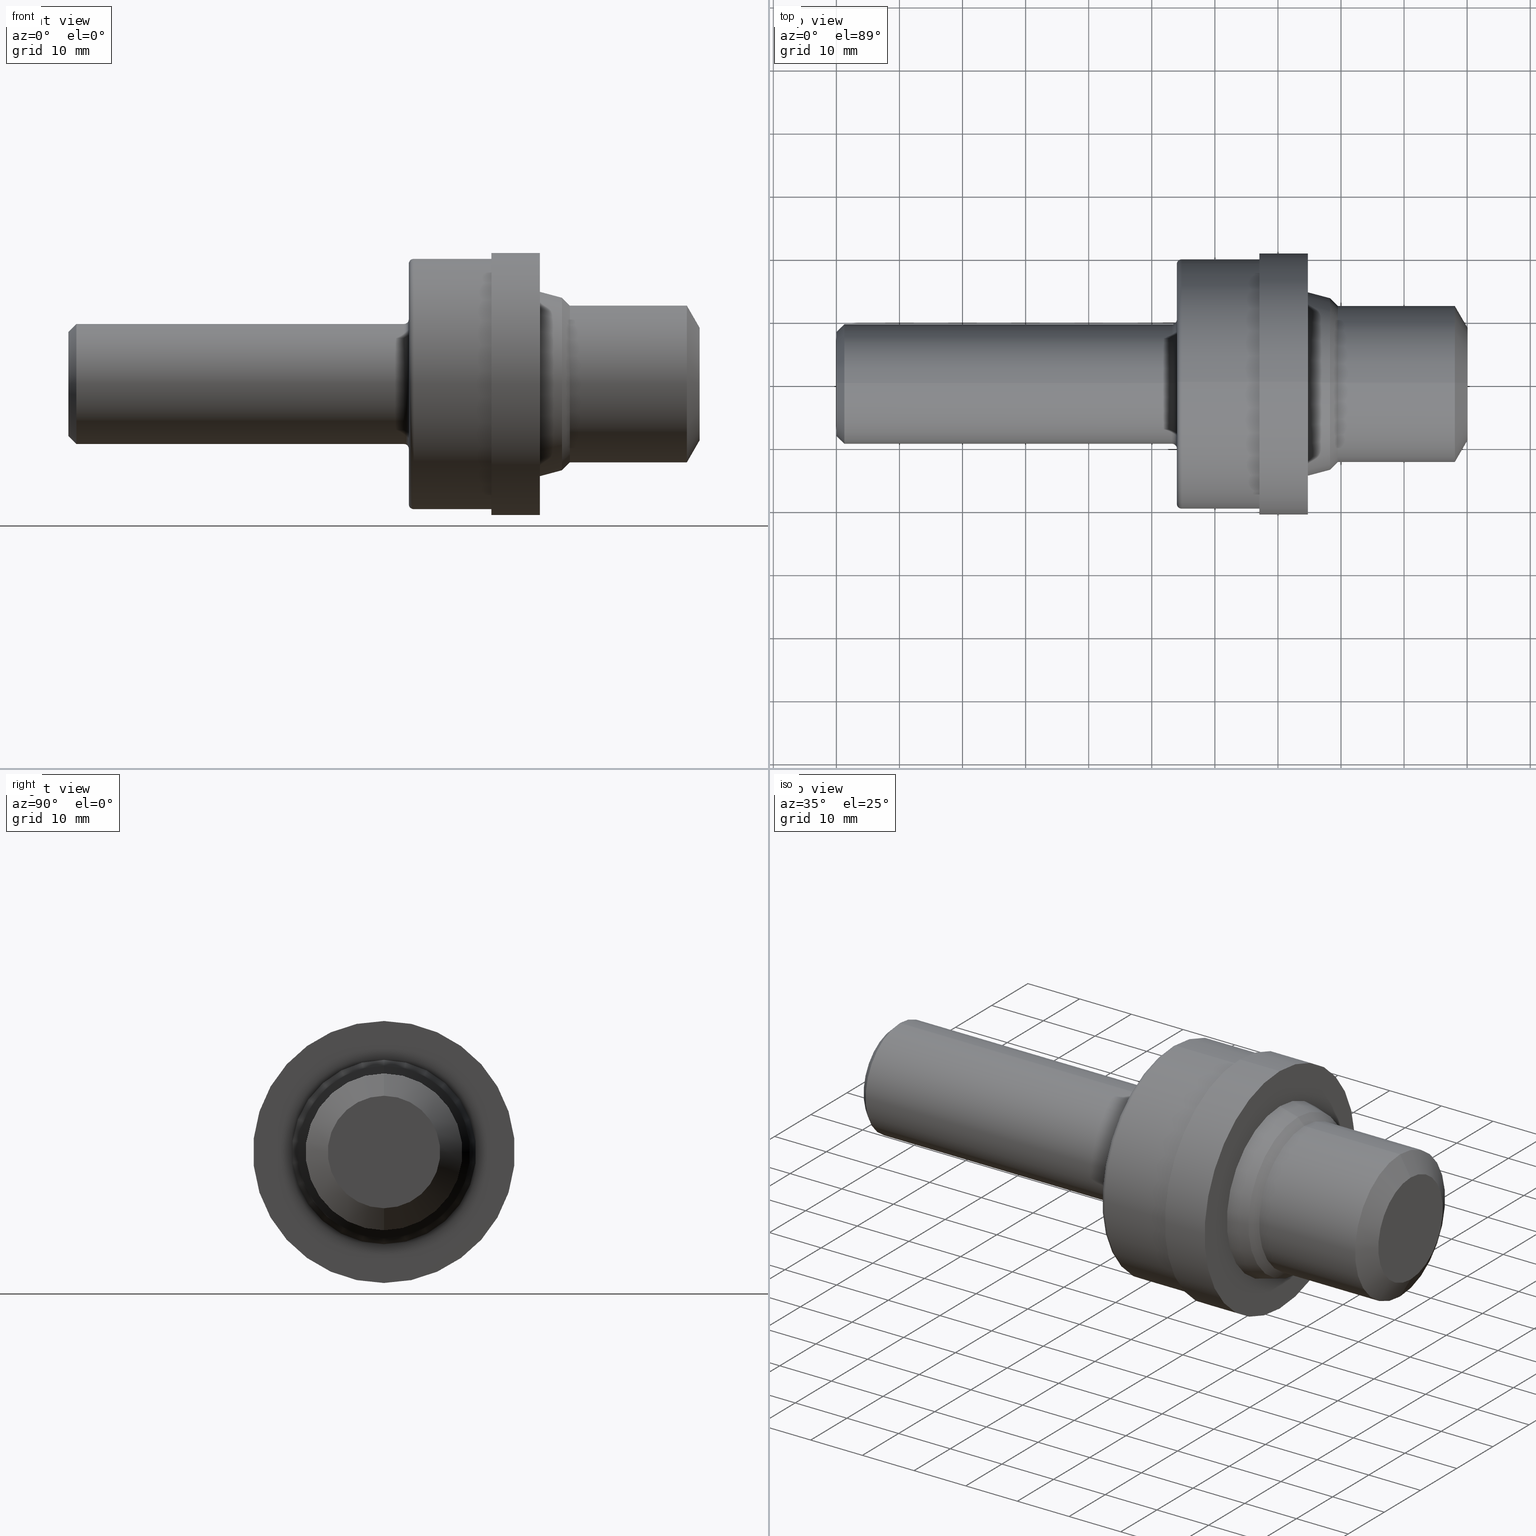
[diagram: canonical four-view strip — front | top / right | iso, engineering-drawing reading convention]
A machine part, canonical four-view strip (front | top / right | iso — engineering-drawing reading convention). The complete STEP part file that produces these views, byte-faithful:
ISO-10303-21;
HEADER;
FILE_DESCRIPTION (( 'STEP AP214' ),
    '1' );
FILE_NAME ('MS16142-12R.STEP',
    '2018-07-13T17:10:02',
    ( '' ),
    ( '' ),
    'SwSTEP 2.0',
    'SolidWorks 2018',
    '' );
FILE_SCHEMA (( 'AUTOMOTIVE_DESIGN' ));
ENDSEC;

DATA;
#1 = EDGE_CURVE ( 'NONE', #489, #303, #291, .T. ) ;
#2 = ORIENTED_EDGE ( 'NONE', *, *, #654, .F. ) ;
#3 = DIRECTION ( 'NONE',  ( 0.0000000000000000000, 0.0000000000000000000, 1.000000000000000000 ) ) ;
#4 = EDGE_LOOP ( 'NONE', ( #304, #479, #646, #320 ) ) ;
#5 = PRESENTATION_LAYER_ASSIGNMENT (  '', '', ( #650 ) ) ;
#6 = ORIENTED_EDGE ( 'NONE', *, *, #584, .F. ) ;
#7 = VERTEX_POINT ( 'NONE', #241 ) ;
#8 = DIRECTION ( 'NONE',  ( -1.000000000000000000, -0.0000000000000000000, -0.0000000000000000000 ) ) ;
#9 = FACE_OUTER_BOUND ( 'NONE', #151, .T. ) ;
#10 = EDGE_LOOP ( 'NONE', ( #555, #548, #166, #289 ) ) ;
#11 = FACE_OUTER_BOUND ( 'NONE', #416, .T. ) ;
#12 = EDGE_CURVE ( 'NONE', #632, #578, #557, .T. ) ;
#13 = CARTESIAN_POINT ( 'NONE',  ( 3.859999999999999876, 0.0000000000000000000, 0.0000000000000000000 ) ) ;
#14 = DIRECTION ( 'NONE',  ( 0.0000000000000000000, 0.0000000000000000000, 1.000000000000000000 ) ) ;
#15 = CIRCLE ( 'NONE', #610, 0.3748500000000000165 ) ;
#16 = EDGE_CURVE ( 'NONE', #63, #653, #430, .T. ) ;
#17 = AXIS2_PLACEMENT_3D ( 'NONE', #33, #282, #125 ) ;
#18 = UNCERTAINTY_MEASURE_WITH_UNIT (LENGTH_MEASURE( 1.000000000000000082E-05 ), #197, 'distance_accuracy_value', 'NONE');
#19 = DIRECTION ( 'NONE',  ( 0.0000000000000000000, 0.0000000000000000000, 1.000000000000000000 ) ) ;
#20 = DIRECTION ( 'NONE',  ( 0.0000000000000000000, 0.0000000000000000000, 1.000000000000000000 ) ) ;
#21 = EDGE_LOOP ( 'NONE', ( #46, #526 ) ) ;
#22 = EDGE_CURVE ( 'NONE', #122, #231, #26, .T. ) ;
#23 = EDGE_LOOP ( 'NONE', ( #117, #670, #608, #580 ) ) ;
#24 = CARTESIAN_POINT ( 'NONE',  ( 2.154999999999999805, 0.0000000000000000000, 0.0000000000000000000 ) ) ;
#25 = DIRECTION ( 'NONE',  ( 1.000000000000000000, 0.0000000000000000000, 0.0000000000000000000 ) ) ;
#26 = LINE ( 'NONE', #44, #139 ) ;
#27 = ORIENTED_EDGE ( 'NONE', *, *, #505, .F. ) ;
#28 = ORIENTED_EDGE ( 'NONE', *, *, #322, .T. ) ;
#29 = AXIS2_PLACEMENT_3D ( 'NONE', #305, #524, #3 ) ;
#30 = CARTESIAN_POINT ( 'NONE',  ( 2.640000000000000124, 0.0000000000000000000, 0.0000000000000000000 ) ) ;
#31 = LINE ( 'NONE', #268, #531 ) ;
#32 = DIRECTION ( 'NONE',  ( 0.0000000000000000000, 0.0000000000000000000, -1.000000000000000000 ) ) ;
#33 = CARTESIAN_POINT ( 'NONE',  ( 0.05000000000000000278, 0.0000000000000000000, 0.0000000000000000000 ) ) ;
#34 = FACE_OUTER_BOUND ( 'NONE', #398, .T. ) ;
#35 = DIRECTION ( 'NONE',  ( 0.0000000000000000000, 0.0000000000000000000, -1.000000000000000000 ) ) ;
#36 = PLANE ( 'NONE',  #409 ) ;
#37 = ORIENTED_EDGE ( 'NONE', *, *, #215, .F. ) ;
#38 = DIRECTION ( 'NONE',  ( 0.0000000000000000000, 0.0000000000000000000, 1.000000000000000000 ) ) ;
#39 = CARTESIAN_POINT ( 'NONE',  ( 2.094999999999999751, 0.0000000000000000000, 0.0000000000000000000 ) ) ;
#40 = CARTESIAN_POINT ( 'NONE',  ( 2.154999999999999805, 0.0000000000000000000, 0.7810000000000001386 ) ) ;
#41 = ORIENTED_EDGE ( 'NONE', *, *, #89, .F. ) ;
#42 = ORIENTED_EDGE ( 'NONE', *, *, #253, .F. ) ;
#43 = CLOSED_SHELL ( 'NONE', ( #257, #57, #147, #52, #152, #301, #351, #201, #631, #456, #522, #251, #206, #410, #357, #571, #298, #460, #413, #628, #576, #102, #518, #693, #690 ) ) ;
#44 = CARTESIAN_POINT ( 'NONE',  ( 3.081000000000000405, 0.0000000000000000000, 0.5382730114445047898 ) ) ;
#45 = MECHANICAL_DESIGN_GEOMETRIC_PRESENTATION_REPRESENTATION (  '', ( #650 ), #487 ) ;
#46 = ORIENTED_EDGE ( 'NONE', *, *, #573, .T. ) ;
#47 = FACE_OUTER_BOUND ( 'NONE', #691, .T. ) ;
#48 = APPLICATION_CONTEXT ( 'automotive_design' ) ;
#49 = CIRCLE ( 'NONE', #258, 0.5752500000000000391 ) ;
#50 = CARTESIAN_POINT ( 'NONE',  ( 2.942999999999999616, 0.0000000000000000000, 0.8175000000000000044 ) ) ;
#51 = DIRECTION ( 'NONE',  ( 0.0000000000000000000, 0.0000000000000000000, 1.000000000000000000 ) ) ;
#52 = ADVANCED_FACE ( 'NONE', ( #9 ), #677, .T. ) ;
#53 = AXIS2_PLACEMENT_3D ( 'NONE', #200, #148, #343 ) ;
#54 = CARTESIAN_POINT ( 'NONE',  ( 3.939999999999999947, 0.0000000000000000000, 0.3509359353944886961 ) ) ;
#55 = AXIS2_PLACEMENT_3D ( 'NONE', #437, #319, #77 ) ;
#56 = CARTESIAN_POINT ( 'NONE',  ( 2.154999999999999805, 9.564491501340829556E-17, -0.7810000000000001386 ) ) ;
#57 = ADVANCED_FACE ( 'NONE', ( #276 ), #543, .T. ) ;
#58 = ORIENTED_EDGE ( 'NONE', *, *, #72, .F. ) ;
#59 = CARTESIAN_POINT ( 'NONE',  ( 0.05000000000000000278, 0.0000000000000000000, -0.3748500000000000165 ) ) ;
#60 = EDGE_CURVE ( 'NONE', #303, #489, #400, .T. ) ;
#61 = DIRECTION ( 'NONE',  ( -1.000000000000000000, -0.0000000000000000000, -0.0000000000000000000 ) ) ;
#62 = VERTEX_POINT ( 'NONE', #87 ) ;
#63 = VERTEX_POINT ( 'NONE', #40 ) ;
#64 = CIRCLE ( 'NONE', #183, 0.8175000000000000044 ) ;
#65 = AXIS2_PLACEMENT_3D ( 'NONE', #517, #561, #568 ) ;
#66 = AXIS2_PLACEMENT_3D ( 'NONE', #299, #682, #618 ) ;
#67 = DIRECTION ( 'NONE',  ( 0.0000000000000000000, 0.0000000000000000000, 1.000000000000000000 ) ) ;
#68 = CIRCLE ( 'NONE', #559, 0.7510000000000001119 ) ;
#69 = ORIENTED_EDGE ( 'NONE', *, *, #361, .F. ) ;
#70 = VERTEX_POINT ( 'NONE', #337 ) ;
#71 = CARTESIAN_POINT ( 'NONE',  ( 3.939999999999999947, 0.0000000000000000000, 0.0000000000000000000 ) ) ;
#72 = EDGE_CURVE ( 'NONE', #182, #260, #124, .T. ) ;
#73 = DIRECTION ( 'NONE',  ( 0.0000000000000000000, -1.224646799147352221E-16, 1.000000000000000000 ) ) ;
#74 = EDGE_LOOP ( 'NONE', ( #193, #384, #592, #574 ) ) ;
#75 = FACE_OUTER_BOUND ( 'NONE', #74, .T. ) ;
#76 = DIRECTION ( 'NONE',  ( -1.000000000000000000, -0.0000000000000000000, -0.0000000000000000000 ) ) ;
#77 = DIRECTION ( 'NONE',  ( 0.0000000000000000000, 0.0000000000000000000, 1.000000000000000000 ) ) ;
#78 = FACE_BOUND ( 'NONE', #558, .T. ) ;
#79 = ORIENTED_EDGE ( 'NONE', *, *, #459, .F. ) ;
#80 = CARTESIAN_POINT ( 'NONE',  ( 3.129773011444504593, 5.994646081826293618E-17, -0.4894999999999999907 ) ) ;
#81 = VECTOR ( 'NONE', #252, 39.37007874015748143 ) ;
#82 = CARTESIAN_POINT ( 'NONE',  ( 0.05000000000000000278, 0.0000000000000000000, 0.0000000000000000000 ) ) ;
#83 = CIRCLE ( 'NONE', #443, 0.4894999999999999907 ) ;
#84 = DIRECTION ( 'NONE',  ( -1.000000000000000000, -0.0000000000000000000, -0.0000000000000000000 ) ) ;
#85 = CARTESIAN_POINT ( 'NONE',  ( 2.942999999999999616, 0.0000000000000000000, 0.0000000000000000000 ) ) ;
#86 = VERTEX_POINT ( 'NONE', #497 ) ;
#87 = CARTESIAN_POINT ( 'NONE',  ( 2.640000000000000124, 0.0000000000000000000, 0.7810000000000001386 ) ) ;
#88 = ORIENTED_EDGE ( 'NONE', *, *, #424, .F. ) ;
#89 = EDGE_CURVE ( 'NONE', #653, #579, #529, .T. ) ;
#90 =( NAMED_UNIT ( * ) PLANE_ANGLE_UNIT ( ) SI_UNIT ( $, .RADIAN. ) );
#91 = FACE_OUTER_BOUND ( 'NONE', #4, .T. ) ;
#92 = CARTESIAN_POINT ( 'NONE',  ( 3.129773011444504593, 0.0000000000000000000, 0.0000000000000000000 ) ) ;
#93 = EDGE_LOOP ( 'NONE', ( #374, #503, #380, #37 ) ) ;
#94 = AXIS2_PLACEMENT_3D ( 'NONE', #552, #532, #530 ) ;
#95 = DIRECTION ( 'NONE',  ( -1.000000000000000000, -0.0000000000000000000, -0.0000000000000000000 ) ) ;
#96 = AXIS2_PLACEMENT_3D ( 'NONE', #407, #95, #297 ) ;
#97 = VECTOR ( 'NONE', #521, 39.37007874015748143 ) ;
#98 = CARTESIAN_POINT ( 'NONE',  ( 2.125000000000000000, 0.0000000000000000000, 0.7510000000000001119 ) ) ;
#99 = VECTOR ( 'NONE', #547, 39.37007874015748143 ) ;
#100 = TOROIDAL_SURFACE ( 'NONE', #550, 0.4048500000000005428, 0.03000000000000002318 ) ;
#101 = CARTESIAN_POINT ( 'NONE',  ( 2.094999999999999751, 0.0000000000000000000, 0.3748500000000004606 ) ) ;
#102 = ADVANCED_FACE ( 'NONE', ( #264 ), #367, .T. ) ;
#103 = DIRECTION ( 'NONE',  ( -1.000000000000000000, -0.0000000000000000000, -0.0000000000000000000 ) ) ;
#104 = ORIENTED_EDGE ( 'NONE', *, *, #498, .T. ) ;
#105 = CARTESIAN_POINT ( 'NONE',  ( 0.0000000000000000000, 0.0000000000000000000, 0.8175000000000000044 ) ) ;
#106 = DIRECTION ( 'NONE',  ( -1.000000000000000000, -0.0000000000000000000, -0.0000000000000000000 ) ) ;
#107 = CARTESIAN_POINT ( 'NONE',  ( 0.0000000000000000000, 0.0000000000000000000, 0.0000000000000000000 ) ) ;
#108 = ORIENTED_EDGE ( 'NONE', *, *, #22, .F. ) ;
#109 = ORIENTED_EDGE ( 'NONE', *, *, #72, .T. ) ;
#110 = DIRECTION ( 'NONE',  ( 0.0000000000000000000, 0.0000000000000000000, 1.000000000000000000 ) ) ;
#111 = ORIENTED_EDGE ( 'NONE', *, *, #387, .F. ) ;
#112 = VECTOR ( 'NONE', #515, 39.37007874015748143 ) ;
#113 = EDGE_CURVE ( 'NONE', #220, #540, #656, .T. ) ;
#114 = ORIENTED_EDGE ( 'NONE', *, *, #615, .T. ) ;
#115 = LINE ( 'NONE', #190, #658 ) ;
#116 = AXIS2_PLACEMENT_3D ( 'NONE', #341, #525, #676 ) ;
#117 = ORIENTED_EDGE ( 'NONE', *, *, #322, .F. ) ;
#118 = AXIS2_PLACEMENT_3D ( 'NONE', #593, #321, #388 ) ;
#119 = DIRECTION ( 'NONE',  ( -1.000000000000000000, -0.0000000000000000000, -0.0000000000000000000 ) ) ;
#120 = VERTEX_POINT ( 'NONE', #59 ) ;
#121 = CARTESIAN_POINT ( 'NONE',  ( 3.129773011444504593, 0.0000000000000000000, 0.4894999999999999907 ) ) ;
#122 = VERTEX_POINT ( 'NONE', #461 ) ;
#123 = DIRECTION ( 'NONE',  ( -1.000000000000000000, -0.0000000000000000000, -0.0000000000000000000 ) ) ;
#124 = CIRCLE ( 'NONE', #471, 0.3748500000000004606 ) ;
#125 = DIRECTION ( 'NONE',  ( 0.0000000000000000000, 0.0000000000000000000, -1.000000000000000000 ) ) ;
#126 =( GEOMETRIC_REPRESENTATION_CONTEXT ( 3 ) GLOBAL_UNCERTAINTY_ASSIGNED_CONTEXT ( ( #533 ) ) GLOBAL_UNIT_ASSIGNED_CONTEXT ( ( #368, #470, #451 ) ) REPRESENTATION_CONTEXT ( 'NONE', 'WORKASPACE' ) );
#127 = VECTOR ( 'NONE', #469, 39.37007874015748854 ) ;
#128 = AXIS2_PLACEMENT_3D ( 'NONE', #638, #472, #585 ) ;
#129 = CARTESIAN_POINT ( 'NONE',  ( 0.0000000000000000000, 0.0000000000000000000, 0.0000000000000000000 ) ) ;
#130 = FACE_BOUND ( 'NONE', #21, .T. ) ;
#131 = VERTEX_POINT ( 'NONE', #692 ) ;
#132 = DIRECTION ( 'NONE',  ( 0.0000000000000000000, 0.0000000000000000000, 1.000000000000000000 ) ) ;
#133 = DIRECTION ( 'NONE',  ( -1.000000000000000000, -0.0000000000000000000, -0.0000000000000000000 ) ) ;
#134 = EDGE_LOOP ( 'NONE', ( #678, #168, #202, #527 ) ) ;
#135 = DIRECTION ( 'NONE',  ( -1.000000000000000000, -0.0000000000000000000, -0.0000000000000000000 ) ) ;
#136 = ORIENTED_EDGE ( 'NONE', *, *, #647, .F. ) ;
#137 = DIRECTION ( 'NONE',  ( -0.0000000000000000000, 1.000000000000000000, 1.224646799147353207E-16 ) ) ;
#138 = AXIS2_PLACEMENT_3D ( 'NONE', #13, #528, #67 ) ;
#139 = VECTOR ( 'NONE', #455, 39.37007874015748143 ) ;
#140 = CONICAL_SURFACE ( 'NONE', #333, 0.3509359353944886961, 1.047197551196600074 ) ;
#141 =( LENGTH_UNIT ( ) NAMED_UNIT ( * ) SI_UNIT ( $, .METRE. ) );
#142 = CARTESIAN_POINT ( 'NONE',  ( 0.0000000000000000000, 0.0000000000000000000, 0.0000000000000000000 ) ) ;
#143 = COLOUR_RGB ( '',0.7529411764705882248, 0.7529411764705882248, 0.7529411764705882248 ) ;
#144 =( CONVERSION_BASED_UNIT ( 'INCH', #370 ) LENGTH_UNIT ( ) NAMED_UNIT ( #438 ) );
#145 = DIRECTION ( 'NONE',  ( -1.000000000000000000, -0.0000000000000000000, -0.0000000000000000000 ) ) ;
#146 = DIRECTION ( 'NONE',  ( -0.0000000000000000000, 0.0000000000000000000, 1.000000000000000000 ) ) ;
#147 = ADVANCED_FACE ( 'NONE', ( #158 ), #491, .T. ) ;
#148 = DIRECTION ( 'NONE',  ( -1.000000000000000000, -0.0000000000000000000, -0.0000000000000000000 ) ) ;
#149 = AXIS2_PLACEMENT_3D ( 'NONE', #277, #25, #35 ) ;
#150 = DIRECTION ( 'NONE',  ( -1.000000000000000000, 0.0000000000000000000, -0.0000000000000000000 ) ) ;
#151 = EDGE_LOOP ( 'NONE', ( #590, #155, #348, #108 ) ) ;
#152 = ADVANCED_FACE ( 'NONE', ( #383 ), #245, .T. ) ;
#153 = VERTEX_POINT ( 'NONE', #350 ) ;
#154 = CARTESIAN_POINT ( 'NONE',  ( 2.942999999999999616, 0.8175000000000000044, 0.0000000000000000000 ) ) ;
#155 = ORIENTED_EDGE ( 'NONE', *, *, #354, .T. ) ;
#156 = ORIENTED_EDGE ( 'NONE', *, *, #466, .T. ) ;
#157 = DIRECTION ( 'NONE',  ( -1.000000000000000000, -0.0000000000000000000, -0.0000000000000000000 ) ) ;
#158 = FACE_OUTER_BOUND ( 'NONE', #93, .T. ) ;
#159 = ORIENTED_EDGE ( 'NONE', *, *, #408, .T. ) ;
#160 = ORIENTED_EDGE ( 'NONE', *, *, #467, .F. ) ;
#161 = CONICAL_SURFACE ( 'NONE', #162, 0.3748500000000000165, 0.7853981633974470578 ) ;
#162 = AXIS2_PLACEMENT_3D ( 'NONE', #347, #453, #689 ) ;
#163 = FACE_OUTER_BOUND ( 'NONE', #10, .T. ) ;
#164 = DIRECTION ( 'NONE',  ( -1.000000000000000000, -0.0000000000000000000, -0.0000000000000000000 ) ) ;
#165 = SHAPE_DEFINITION_REPRESENTATION ( #642, #235 ) ;
#166 = ORIENTED_EDGE ( 'NONE', *, *, #22, .T. ) ;
#167 = DIRECTION ( 'NONE',  ( -1.000000000000000000, -0.0000000000000000000, -0.0000000000000000000 ) ) ;
#168 = ORIENTED_EDGE ( 'NONE', *, *, #654, .T. ) ;
#169 = CARTESIAN_POINT ( 'NONE',  ( 2.125000000000000000, 9.380794481468725749E-17, -0.7510000000000001119 ) ) ;
#170 = CARTESIAN_POINT ( 'NONE',  ( 3.081000000000000405, 0.0000000000000000000, 0.0000000000000000000 ) ) ;
#171 = CIRCLE ( 'NONE', #372, 0.7810000000000001386 ) ;
#172 = PLANE ( 'NONE',  #356 ) ;
#173 = FACE_OUTER_BOUND ( 'NONE', #263, .T. ) ;
#174 = EDGE_CURVE ( 'NONE', #260, #120, #230, .T. ) ;
#175 = AXIS2_PLACEMENT_3D ( 'NONE', #240, #553, #508 ) ;
#176 = DIRECTION ( 'NONE',  ( -1.000000000000000000, -0.0000000000000000000, -0.0000000000000000000 ) ) ;
#177 = CARTESIAN_POINT ( 'NONE',  ( 2.125000000000000000, 0.0000000000000000000, 0.4048500000000005428 ) ) ;
#178 = DIRECTION ( 'NONE',  ( 1.000000000000000000, 0.0000000000000000000, 0.0000000000000000000 ) ) ;
#179 = LINE ( 'NONE', #679, #589 ) ;
#180 = LENGTH_MEASURE_WITH_UNIT ( LENGTH_MEASURE( 0.02539999999999999897 ), #141 );
#181 = DIRECTION ( 'NONE',  ( 0.0000000000000000000, 0.0000000000000000000, 1.000000000000000000 ) ) ;
#182 = VERTEX_POINT ( 'NONE', #101 ) ;
#183 = AXIS2_PLACEMENT_3D ( 'NONE', #490, #599, #385 ) ;
#184 = VERTEX_POINT ( 'NONE', #54 ) ;
#185 = SURFACE_SIDE_STYLE ('',( #683 ) ) ;
#186 = ORIENTED_EDGE ( 'NONE', *, *, #345, .T. ) ;
#187 = DIRECTION ( 'NONE',  ( 0.0000000000000000000, 0.0000000000000000000, 1.000000000000000000 ) ) ;
#188 = EDGE_CURVE ( 'NONE', #131, #231, #216, .T. ) ;
#189 = AXIS2_PLACEMENT_3D ( 'NONE', #666, #288, #607 ) ;
#190 = CARTESIAN_POINT ( 'NONE',  ( 3.939999999999999947, 4.297725699866428699E-17, -0.3509359353944886961 ) ) ;
#191 = CONICAL_SURFACE ( 'NONE', #17, 0.3748500000000000165, 0.7853981633974470578 ) ;
#192 = STYLED_ITEM ( 'NONE', ( #335 ), #235 ) ;
#193 = ORIENTED_EDGE ( 'NONE', *, *, #498, .F. ) ;
#194 = ORIENTED_EDGE ( 'NONE', *, *, #387, .T. ) ;
#195 = CYLINDRICAL_SURFACE ( 'NONE', #66, 0.3748500000000002386 ) ;
#196 =( LENGTH_UNIT ( ) NAMED_UNIT ( * ) SI_UNIT ( $, .METRE. ) );
#197 =( CONVERSION_BASED_UNIT ( 'INCH', #180 ) LENGTH_UNIT ( ) NAMED_UNIT ( #635 ) );
#198 = FACE_OUTER_BOUND ( 'NONE', #255, .T. ) ;
#199 = EDGE_LOOP ( 'NONE', ( #306, #58, #673, #566 ) ) ;
#200 = CARTESIAN_POINT ( 'NONE',  ( 2.094999999999999751, 0.0000000000000000000, 0.0000000000000000000 ) ) ;
#201 = ADVANCED_FACE ( 'NONE', ( #509 ), #640, .F. ) ;
#202 = ORIENTED_EDGE ( 'NONE', *, *, #647, .T. ) ;
#203 = CARTESIAN_POINT ( 'NONE',  ( 0.0000000000000000000, 4.590588526603856213E-17, -0.3748500000000002386 ) ) ;
#204 = EDGE_LOOP ( 'NONE', ( #69, #27 ) ) ;
#205 = DIRECTION ( 'NONE',  ( 0.0000000000000000000, 0.0000000000000000000, 1.000000000000000000 ) ) ;
#206 = ADVANCED_FACE ( 'NONE', ( #344 ), #195, .T. ) ;
#207 = CARTESIAN_POINT ( 'NONE',  ( 2.154999999999999805, 0.0000000000000000000, 0.7510000000000001119 ) ) ;
#208 = ORIENTED_EDGE ( 'NONE', *, *, #285, .T. ) ;
#209 = CARTESIAN_POINT ( 'NONE',  ( 2.125000000000000000, 4.957982566348065676E-17, -0.4048500000000005428 ) ) ;
#210 = FACE_OUTER_BOUND ( 'NONE', #523, .T. ) ;
#211 = AXIS2_PLACEMENT_3D ( 'NONE', #620, #248, #614 ) ;
#212 = CARTESIAN_POINT ( 'NONE',  ( 3.939999999999999947, 0.0000000000000000000, 0.0000000000000000000 ) ) ;
#213 = SURFACE_STYLE_USAGE ( .BOTH. , #185 ) ;
#214 = ORIENTED_EDGE ( 'NONE', *, *, #60, .F. ) ;
#215 = EDGE_CURVE ( 'NONE', #578, #122, #475, .T. ) ;
#216 = CIRCLE ( 'NONE', #649, 0.5752500000000000391 ) ;
#217 = DIRECTION ( 'NONE',  ( 0.0000000000000000000, 0.0000000000000000000, 1.000000000000000000 ) ) ;
#218 = PRODUCT ( 'MS16142-12R', 'MS16142-12R', '', ( #564 ) ) ;
#219 = LINE ( 'NONE', #389, #233 ) ;
#220 = VERTEX_POINT ( 'NONE', #50 ) ;
#221 = AXIS2_PLACEMENT_3D ( 'NONE', #541, #123, #434 ) ;
#222 = CARTESIAN_POINT ( 'NONE',  ( 3.939999999999999947, 0.0000000000000000000, 0.3509359353944886961 ) ) ;
#223 = CARTESIAN_POINT ( 'NONE',  ( 3.129773011444504593, 0.0000000000000000000, 0.0000000000000000000 ) ) ;
#224 = CIRCLE ( 'NONE', #520, 0.03000000000000002318 ) ;
#225 = ORIENTED_EDGE ( 'NONE', *, *, #1, .F. ) ;
#226 = DIRECTION ( 'NONE',  ( 0.0000000000000000000, 0.0000000000000000000, 1.000000000000000000 ) ) ;
#227 = ORIENTED_EDGE ( 'NONE', *, *, #422, .T. ) ;
#228 = CARTESIAN_POINT ( 'NONE',  ( 0.05000000000000000278, 4.590588526603853748E-17, 0.3748500000000000165 ) ) ;
#229 = PRESENTATION_LAYER_ASSIGNMENT (  '', '', ( #192 ) ) ;
#230 = LINE ( 'NONE', #203, #97 ) ;
#231 = VERTEX_POINT ( 'NONE', #349 ) ;
#232 = DIMENSIONAL_EXPONENTS ( 1.000000000000000000, 0.0000000000000000000, 0.0000000000000000000, 0.0000000000000000000, 0.0000000000000000000, 0.0000000000000000000, 0.0000000000000000000 ) ;
#233 = VECTOR ( 'NONE', #234, 39.37007874015748143 ) ;
#234 = DIRECTION ( 'NONE',  ( -1.000000000000000000, -0.0000000000000000000, -0.0000000000000000000 ) ) ;
#235 = ADVANCED_BREP_SHAPE_REPRESENTATION ( 'MS16142-12R', ( #627, #403 ), #126 ) ;
#236 = ORIENTED_EDGE ( 'NONE', *, *, #247, .T. ) ;
#237 = CARTESIAN_POINT ( 'NONE',  ( 2.942999999999999616, 0.0000000000000000000, 0.0000000000000000000 ) ) ;
#238 = VERTEX_POINT ( 'NONE', #98 ) ;
#239 = CARTESIAN_POINT ( 'NONE',  ( 2.125000000000000000, 0.0000000000000000000, 0.0000000000000000000 ) ) ;
#240 = CARTESIAN_POINT ( 'NONE',  ( 3.081000000000000405, 0.0000000000000000000, 0.0000000000000000000 ) ) ;
#241 = CARTESIAN_POINT ( 'NONE',  ( 0.0000000000000000000, 0.0000000000000000000, -0.3248500000000001386 ) ) ;
#242 = ORIENTED_EDGE ( 'NONE', *, *, #89, .T. ) ;
#243 = ORIENTED_EDGE ( 'NONE', *, *, #655, .F. ) ;
#244 = CARTESIAN_POINT ( 'NONE',  ( 0.0000000000000000000, 0.0000000000000000000, 0.4894999999999999907 ) ) ;
#245 = CYLINDRICAL_SURFACE ( 'NONE', #606, 0.8175000000000000044 ) ;
#246 = LINE ( 'NONE', #382, #99 ) ;
#247 = EDGE_CURVE ( 'NONE', #62, #379, #619, .T. ) ;
#248 = DIRECTION ( 'NONE',  ( -1.000000000000000000, -0.0000000000000000000, -0.0000000000000000000 ) ) ;
#249 = SURFACE_STYLE_USAGE ( .BOTH. , #514 ) ;
#250 = AXIS2_PLACEMENT_3D ( 'NONE', #499, #448, #396 ) ;
#251 = ADVANCED_FACE ( 'NONE', ( #75 ), #161, .T. ) ;
#252 = DIRECTION ( 'NONE',  ( -0.7071067811865450192, 0.0000000000000000000, 0.7071067811865500152 ) ) ;
#253 = EDGE_CURVE ( 'NONE', #339, #122, #293, .T. ) ;
#254 = EDGE_CURVE ( 'NONE', #260, #182, #582, .T. ) ;
#255 = EDGE_LOOP ( 'NONE', ( #316, #452, #194, #447 ) ) ;
#256 = DIRECTION ( 'NONE',  ( -1.000000000000000000, -0.0000000000000000000, -0.0000000000000000000 ) ) ;
#257 = ADVANCED_FACE ( 'NONE', ( #47 ), #140, .T. ) ;
#258 = AXIS2_PLACEMENT_3D ( 'NONE', #85, #375, #482 ) ;
#259 = DIRECTION ( 'NONE',  ( -1.000000000000000000, -0.0000000000000000000, -0.0000000000000000000 ) ) ;
#260 = VERTEX_POINT ( 'NONE', #581 ) ;
#261 = CARTESIAN_POINT ( 'NONE',  ( 0.0000000000000000000, 0.0000000000000000000, 0.0000000000000000000 ) ) ;
#262 = VERTEX_POINT ( 'NONE', #307 ) ;
#263 = EDGE_LOOP ( 'NONE', ( #622, #272 ) ) ;
#264 = FACE_OUTER_BOUND ( 'NONE', #428, .T. ) ;
#265 = CARTESIAN_POINT ( 'NONE',  ( 0.05000000000000000278, 0.0000000000000000000, -0.3748500000000000165 ) ) ;
#266 = CYLINDRICAL_SURFACE ( 'NONE', #672, 0.7810000000000001386 ) ;
#267 = MECHANICAL_DESIGN_GEOMETRIC_PRESENTATION_REPRESENTATION (  '', ( #192 ), #295 ) ;
#268 = CARTESIAN_POINT ( 'NONE',  ( 0.0000000000000000000, 5.994646081826293618E-17, -0.4894999999999999907 ) ) ;
#269 = DIRECTION ( 'NONE',  ( -1.000000000000000000, -0.0000000000000000000, -0.0000000000000000000 ) ) ;
#270 = CIRCLE ( 'NONE', #577, 0.3248500000000001386 ) ;
#271 = AXIS2_PLACEMENT_3D ( 'NONE', #362, #8, #110 ) ;
#272 = ORIENTED_EDGE ( 'NONE', *, *, #616, .T. ) ;
#273 = ORIENTED_EDGE ( 'NONE', *, *, #360, .T. ) ;
#274 = DIRECTION ( 'NONE',  ( 0.0000000000000000000, 0.0000000000000000000, 1.000000000000000000 ) ) ;
#275 = EDGE_LOOP ( 'NONE', ( #312, #159, #160, #425 ) ) ;
#276 = FACE_OUTER_BOUND ( 'NONE', #617, .T. ) ;
#277 = CARTESIAN_POINT ( 'NONE',  ( 2.640000000000000124, 0.7810000000000001386, 0.0000000000000000000 ) ) ;
#278 = FACE_OUTER_BOUND ( 'NONE', #134, .T. ) ;
#279 = FACE_OUTER_BOUND ( 'NONE', #204, .T. ) ;
#280 = DIRECTION ( 'NONE',  ( -1.000000000000000000, -0.0000000000000000000, -0.0000000000000000000 ) ) ;
#281 = CARTESIAN_POINT ( 'NONE',  ( 2.094999999999999751, 4.957982566348065676E-17, -0.4048500000000005428 ) ) ;
#282 = DIRECTION ( 'NONE',  ( 1.000000000000000000, 0.0000000000000000000, 0.0000000000000000000 ) ) ;
#283 = AXIS2_PLACEMENT_3D ( 'NONE', #170, #431, #332 ) ;
#284 = DIRECTION ( 'NONE',  ( 0.0000000000000000000, 0.0000000000000000000, 1.000000000000000000 ) ) ;
#285 = EDGE_CURVE ( 'NONE', #63, #238, #432, .T. ) ;
#286 = CONICAL_SURFACE ( 'NONE', #65, 0.3509359353944886961, 1.047197551196600074 ) ;
#287 = ORIENTED_EDGE ( 'NONE', *, *, #393, .F. ) ;
#288 = DIRECTION ( 'NONE',  ( -1.000000000000000000, -0.0000000000000000000, -0.0000000000000000000 ) ) ;
#289 = ORIENTED_EDGE ( 'NONE', *, *, #188, .F. ) ;
#290 = CARTESIAN_POINT ( 'NONE',  ( 2.125000000000000000, 0.0000000000000000000, 0.0000000000000000000 ) ) ;
#291 = CIRCLE ( 'NONE', #507, 0.4048500000000005428 ) ;
#292 = EDGE_CURVE ( 'NONE', #653, #63, #171, .T. ) ;
#293 = CIRCLE ( 'NONE', #128, 0.5382730114445047898 ) ;
#294 = TOROIDAL_SURFACE ( 'NONE', #394, 0.7510000000000001119, 0.02999999999999995379 ) ;
#295 =( GEOMETRIC_REPRESENTATION_CONTEXT ( 3 ) GLOBAL_UNCERTAINTY_ASSIGNED_CONTEXT ( ( #18 ) ) GLOBAL_UNIT_ASSIGNED_CONTEXT ( ( #197, #688, #406 ) ) REPRESENTATION_CONTEXT ( 'NONE', 'WORKASPACE' ) );
#296 = ORIENTED_EDGE ( 'NONE', *, *, #16, .T. ) ;
#297 = DIRECTION ( 'NONE',  ( 0.0000000000000000000, 0.0000000000000000000, 1.000000000000000000 ) ) ;
#298 = ADVANCED_FACE ( 'NONE', ( #278 ), #544, .T. ) ;
#299 = CARTESIAN_POINT ( 'NONE',  ( 0.0000000000000000000, 0.0000000000000000000, 0.0000000000000000000 ) ) ;
#300 = CARTESIAN_POINT ( 'NONE',  ( 0.0000000000000000000, 0.0000000000000000000, 0.7810000000000001386 ) ) ;
#301 = ADVANCED_FACE ( 'NONE', ( #11 ), #266, .T. ) ;
#302 = CARTESIAN_POINT ( 'NONE',  ( 0.0000000000000000000, 0.0000000000000000000, 0.0000000000000000000 ) ) ;
#303 = VERTEX_POINT ( 'NONE', #209 ) ;
#304 = ORIENTED_EDGE ( 'NONE', *, *, #408, .F. ) ;
#305 = CARTESIAN_POINT ( 'NONE',  ( 0.0000000000000000000, 0.0000000000000000000, 0.0000000000000000000 ) ) ;
#306 = ORIENTED_EDGE ( 'NONE', *, *, #422, .F. ) ;
#307 = CARTESIAN_POINT ( 'NONE',  ( 2.942999999999999616, 1.001148758302961187E-16, -0.8175000000000000044 ) ) ;
#308 = VECTOR ( 'NONE', #327, 39.37007874015748854 ) ;
#309 = DIRECTION ( 'NONE',  ( -1.000000000000000000, -0.0000000000000000000, -0.0000000000000000000 ) ) ;
#310 = EDGE_CURVE ( 'NONE', #395, #632, #402, .T. ) ;
#311 = CARTESIAN_POINT ( 'NONE',  ( 3.081000000000000405, 6.818361958712172162E-17, -0.5382730114445047898 ) ) ;
#312 = ORIENTED_EDGE ( 'NONE', *, *, #361, .T. ) ;
#313 = CARTESIAN_POINT ( 'NONE',  ( 3.859999999999999876, 0.0000000000000000000, 0.4894999999999999907 ) ) ;
#314 = VECTOR ( 'NONE', #106, 39.37007874015748143 ) ;
#315 = EDGE_CURVE ( 'NONE', #7, #120, #418, .T. ) ;
#316 = ORIENTED_EDGE ( 'NONE', *, *, #345, .F. ) ;
#317 = AXIS2_PLACEMENT_3D ( 'NONE', #598, #659, #484 ) ;
#318 = ORIENTED_EDGE ( 'NONE', *, *, #323, .T. ) ;
#319 = DIRECTION ( 'NONE',  ( -1.000000000000000000, -0.0000000000000000000, -0.0000000000000000000 ) ) ;
#320 = ORIENTED_EDGE ( 'NONE', *, *, #615, .F. ) ;
#321 = DIRECTION ( 'NONE',  ( -1.000000000000000000, -0.0000000000000000000, -0.0000000000000000000 ) ) ;
#322 = EDGE_CURVE ( 'NONE', #395, #539, #31, .T. ) ;
#323 = EDGE_CURVE ( 'NONE', #579, #238, #680, .T. ) ;
#324 = DIRECTION ( 'NONE',  ( 0.0000000000000000000, 0.0000000000000000000, -1.000000000000000000 ) ) ;
#325 = CIRCLE ( 'NONE', #55, 0.3509359353944886961 ) ;
#326 = DIRECTION ( 'NONE',  ( 1.000000000000000000, 0.0000000000000000000, 0.0000000000000000000 ) ) ;
#327 = DIRECTION ( 'NONE',  ( 0.7071067811865483499, 8.659560562354922997E-17, 0.7071067811865465735 ) ) ;
#328 = VECTOR ( 'NONE', #480, 39.37007874015748143 ) ;
#329 = DIRECTION ( 'NONE',  ( 0.0000000000000000000, 0.0000000000000000000, 1.000000000000000000 ) ) ;
#330 = PRODUCT_DEFINITION_CONTEXT ( 'detailed design', #48, 'design' ) ;
#331 = LINE ( 'NONE', #545, #328 ) ;
#332 = DIRECTION ( 'NONE',  ( 0.0000000000000000000, 0.0000000000000000000, 1.000000000000000000 ) ) ;
#333 = AXIS2_PLACEMENT_3D ( 'NONE', #212, #309, #366 ) ;
#334 = LINE ( 'NONE', #300, #314 ) ;
#335 = PRESENTATION_STYLE_ASSIGNMENT (( #249 ) ) ;
#336 = DIRECTION ( 'NONE',  ( -1.000000000000000000, -0.0000000000000000000, -0.0000000000000000000 ) ) ;
#337 = CARTESIAN_POINT ( 'NONE',  ( 3.939999999999999947, 5.146185890846361159E-17, -0.3509359353944886961 ) ) ;
#338 = CARTESIAN_POINT ( 'NONE',  ( 0.05000000000000000278, 0.0000000000000000000, 0.0000000000000000000 ) ) ;
#339 = VERTEX_POINT ( 'NONE', #311 ) ;
#340 = CIRCLE ( 'NONE', #221, 0.8175000000000000044 ) ;
#341 = CARTESIAN_POINT ( 'NONE',  ( 2.154999999999999805, 0.0000000000000000000, 0.0000000000000000000 ) ) ;
#342 = ORIENTED_EDGE ( 'NONE', *, *, #467, .T. ) ;
#343 = DIRECTION ( 'NONE',  ( 0.0000000000000000000, 0.0000000000000000000, 1.000000000000000000 ) ) ;
#344 = FACE_OUTER_BOUND ( 'NONE', #458, .T. ) ;
#345 = EDGE_CURVE ( 'NONE', #70, #395, #115, .T. ) ;
#346 = CIRCLE ( 'NONE', #373, 0.8175000000000000044 ) ;
#347 = CARTESIAN_POINT ( 'NONE',  ( 0.05000000000000000278, 0.0000000000000000000, 0.0000000000000000000 ) ) ;
#348 = ORIENTED_EDGE ( 'NONE', *, *, #573, .F. ) ;
#349 = CARTESIAN_POINT ( 'NONE',  ( 2.942999999999999616, 0.0000000000000000000, 0.5752500000000000391 ) ) ;
#350 = CARTESIAN_POINT ( 'NONE',  ( 2.640000000000000124, 1.001148758302961187E-16, -0.8175000000000000044 ) ) ;
#351 = ADVANCED_FACE ( 'NONE', ( #386 ), #510, .T. ) ;
#352 = ORIENTED_EDGE ( 'NONE', *, *, #537, .F. ) ;
#353 = EDGE_CURVE ( 'NONE', #122, #339, #560, .T. ) ;
#354 = EDGE_CURVE ( 'NONE', #339, #131, #246, .T. ) ;
#355 = CARTESIAN_POINT ( 'NONE',  ( 3.129773011444504593, 0.0000000000000000000, 0.0000000000000000000 ) ) ;
#356 = AXIS2_PLACEMENT_3D ( 'NONE', #381, #326, #32 ) ;
#357 = ADVANCED_FACE ( 'NONE', ( #492, #369 ), #36, .F. ) ;
#358 = CARTESIAN_POINT ( 'NONE',  ( 2.154999999999999805, 0.0000000000000000000, 0.0000000000000000000 ) ) ;
#359 = CIRCLE ( 'NONE', #118, 0.4894999999999999907 ) ;
#360 = EDGE_CURVE ( 'NONE', #182, #481, #219, .T. ) ;
#361 = EDGE_CURVE ( 'NONE', #220, #262, #346, .T. ) ;
#362 = CARTESIAN_POINT ( 'NONE',  ( 2.094999999999999751, 0.0000000000000000000, 0.0000000000000000000 ) ) ;
#363 = ORIENTED_EDGE ( 'NONE', *, *, #215, .T. ) ;
#364 = ORIENTED_EDGE ( 'NONE', *, *, #315, .F. ) ;
#365 = AXIS2_PLACEMENT_3D ( 'NONE', #239, #551, #181 ) ;
#366 = DIRECTION ( 'NONE',  ( 0.0000000000000000000, 0.0000000000000000000, 1.000000000000000000 ) ) ;
#367 = CONICAL_SURFACE ( 'NONE', #570, 0.4894999999999999907, 0.7853981633974518317 ) ;
#368 =( CONVERSION_BASED_UNIT ( 'INCH', #411 ) LENGTH_UNIT ( ) NAMED_UNIT ( #232 ) );
#369 = FACE_OUTER_BOUND ( 'NONE', #473, .T. ) ;
#370 = LENGTH_MEASURE_WITH_UNIT ( LENGTH_MEASURE( 0.02539999999999999897 ), #196 );
#371 = ORIENTED_EDGE ( 'NONE', *, *, #174, .F. ) ;
#372 = AXIS2_PLACEMENT_3D ( 'NONE', #358, #61, #415 ) ;
#373 = AXIS2_PLACEMENT_3D ( 'NONE', #237, #549, #542 ) ;
#374 = ORIENTED_EDGE ( 'NONE', *, *, #393, .T. ) ;
#375 = DIRECTION ( 'NONE',  ( -1.000000000000000000, -0.0000000000000000000, -0.0000000000000000000 ) ) ;
#376 = ORIENTED_EDGE ( 'NONE', *, *, #254, .F. ) ;
#377 = DIRECTION ( 'NONE',  ( -0.7071067811865450192, 8.659560562354963673E-17, -0.7071067811865500152 ) ) ;
#378 = CARTESIAN_POINT ( 'NONE',  ( 2.125000000000000000, 0.7510000000000001119, 0.0000000000000000000 ) ) ;
#379 = VERTEX_POINT ( 'NONE', #435 ) ;
#380 = ORIENTED_EDGE ( 'NONE', *, *, #353, .F. ) ;
#381 = CARTESIAN_POINT ( 'NONE',  ( 0.0000000000000000000, 0.0000000000000000000, 0.0000000000000000000 ) ) ;
#382 = CARTESIAN_POINT ( 'NONE',  ( 3.081000000000000405, 6.591943205329194267E-17, -0.5382730114445047898 ) ) ;
#383 = FACE_OUTER_BOUND ( 'NONE', #275, .T. ) ;
#384 = ORIENTED_EDGE ( 'NONE', *, *, #433, .F. ) ;
#385 = DIRECTION ( 'NONE',  ( 0.0000000000000000000, 0.0000000000000000000, 1.000000000000000000 ) ) ;
#386 = FACE_OUTER_BOUND ( 'NONE', #668, .T. ) ;
#387 = EDGE_CURVE ( 'NONE', #184, #632, #641, .T. ) ;
#388 = DIRECTION ( 'NONE',  ( 0.0000000000000000000, 0.0000000000000000000, 1.000000000000000000 ) ) ;
#389 = CARTESIAN_POINT ( 'NONE',  ( 0.0000000000000000000, 0.0000000000000000000, 0.3748500000000002386 ) ) ;
#390 = DIRECTION ( 'NONE',  ( -1.000000000000000000, -0.0000000000000000000, -0.0000000000000000000 ) ) ;
#391 = ORIENTED_EDGE ( 'NONE', *, *, #247, .F. ) ;
#392 = ORIENTED_EDGE ( 'NONE', *, *, #667, .T. ) ;
#393 = EDGE_CURVE ( 'NONE', #578, #539, #83, .T. ) ;
#394 = AXIS2_PLACEMENT_3D ( 'NONE', #24, #76, #38 ) ;
#395 = VERTEX_POINT ( 'NONE', #485 ) ;
#396 = DIRECTION ( 'NONE',  ( 0.0000000000000000000, 0.0000000000000000000, 1.000000000000000000 ) ) ;
#397 = ORIENTED_EDGE ( 'NONE', *, *, #626, .T. ) ;
#398 = EDGE_LOOP ( 'NONE', ( #41, #686, #208, #554 ) ) ;
#399 = EDGE_CURVE ( 'NONE', #632, #395, #621, .T. ) ;
#400 = CIRCLE ( 'NONE', #365, 0.4048500000000005428 ) ;
#401 = APPLICATION_PROTOCOL_DEFINITION ( 'draft international standard', 'automotive_design', 1998, #48 ) ;
#402 = CIRCLE ( 'NONE', #138, 0.4894999999999999907 ) ;
#403 = AXIS2_PLACEMENT_3D ( 'NONE', #502, #51, #454 ) ;
#404 = CONICAL_SURFACE ( 'NONE', #426, 0.5382730114445047898, 0.2617993877991505181 ) ;
#405 =( LENGTH_UNIT ( ) NAMED_UNIT ( * ) SI_UNIT ( $, .METRE. ) );
#406 =( NAMED_UNIT ( * ) SI_UNIT ( $, .STERADIAN. ) SOLID_ANGLE_UNIT ( ) );
#407 = CARTESIAN_POINT ( 'NONE',  ( 2.640000000000000124, 0.0000000000000000000, 0.0000000000000000000 ) ) ;
#408 = EDGE_CURVE ( 'NONE', #262, #153, #331, .T. ) ;
#409 = AXIS2_PLACEMENT_3D ( 'NONE', #378, #178, #324 ) ;
#410 = ADVANCED_FACE ( 'NONE', ( #643 ), #100, .F. ) ;
#411 = LENGTH_MEASURE_WITH_UNIT ( LENGTH_MEASURE( 0.02539999999999999897 ), #405 );
#412 = DIRECTION ( 'NONE',  ( 0.0000000000000000000, 0.0000000000000000000, 1.000000000000000000 ) ) ;
#413 = ADVANCED_FACE ( 'NONE', ( #91 ), #486, .T. ) ;
#414 = ORIENTED_EDGE ( 'NONE', *, *, #16, .F. ) ;
#415 = DIRECTION ( 'NONE',  ( 0.0000000000000000000, 0.0000000000000000000, 1.000000000000000000 ) ) ;
#416 = EDGE_LOOP ( 'NONE', ( #236, #392, #414, #136 ) ) ;
#417 = VECTOR ( 'NONE', #135, 39.37007874015748143 ) ;
#418 = LINE ( 'NONE', #265, #127 ) ;
#419 = CIRCLE ( 'NONE', #500, 0.3509359353944886961 ) ;
#420 = AXIS2_PLACEMENT_3D ( 'NONE', #449, #137, #685 ) ;
#421 = SURFACE_STYLE_FILL_AREA ( #624 ) ;
#422 = EDGE_CURVE ( 'NONE', #260, #303, #634, .T. ) ;
#423 = DIRECTION ( 'NONE',  ( 0.0000000000000000000, 0.0000000000000000000, -1.000000000000000000 ) ) ;
#424 = EDGE_CURVE ( 'NONE', #182, #489, #224, .T. ) ;
#425 = ORIENTED_EDGE ( 'NONE', *, *, #113, .F. ) ;
#426 = AXIS2_PLACEMENT_3D ( 'NONE', #495, #84, #662 ) ;
#427 = DIRECTION ( 'NONE',  ( 0.0000000000000000000, -1.000000000000000000, 0.0000000000000000000 ) ) ;
#428 = EDGE_LOOP ( 'NONE', ( #352, #156, #363, #42 ) ) ;
#429 = CARTESIAN_POINT ( 'NONE',  ( 0.05000000000000000278, 4.590588526603853748E-17, 0.3748500000000000165 ) ) ;
#430 = CIRCLE ( 'NONE', #189, 0.7810000000000001386 ) ;
#431 = DIRECTION ( 'NONE',  ( -1.000000000000000000, -0.0000000000000000000, -0.0000000000000000000 ) ) ;
#432 = CIRCLE ( 'NONE', #684, 0.02999999999999995379 ) ;
#433 = EDGE_CURVE ( 'NONE', #7, #86, #494, .T. ) ;
#434 = DIRECTION ( 'NONE',  ( 0.0000000000000000000, 0.0000000000000000000, 1.000000000000000000 ) ) ;
#435 = CARTESIAN_POINT ( 'NONE',  ( 2.640000000000000124, 9.564491501340829556E-17, -0.7810000000000001386 ) ) ;
#436 = CYLINDRICAL_SURFACE ( 'NONE', #317, 0.4894999999999999907 ) ;
#437 = CARTESIAN_POINT ( 'NONE',  ( 3.939999999999999947, 0.0000000000000000000, 0.0000000000000000000 ) ) ;
#438 = DIMENSIONAL_EXPONENTS ( 1.000000000000000000, 0.0000000000000000000, 0.0000000000000000000, 0.0000000000000000000, 0.0000000000000000000, 0.0000000000000000000, 0.0000000000000000000 ) ;
#439 = PRODUCT_DEFINITION ( 'UNKNOWN', '', #474, #330 ) ;
#440 = DIRECTION ( 'NONE',  ( -1.000000000000000000, -0.0000000000000000000, -0.0000000000000000000 ) ) ;
#441 = FILL_AREA_STYLE_COLOUR ( '', #143 ) ;
#442 = DIRECTION ( 'NONE',  ( -0.0000000000000000000, 1.000000000000000000, 1.224646799147353207E-16 ) ) ;
#443 = AXIS2_PLACEMENT_3D ( 'NONE', #223, #119, #591 ) ;
#444 = CARTESIAN_POINT ( 'NONE',  ( 3.129773011444504593, 6.293294643577743942E-17, -0.4894999999999999907 ) ) ;
#445 = FACE_OUTER_BOUND ( 'NONE', #639, .T. ) ;
#446 = DIRECTION ( 'NONE',  ( -1.000000000000000000, -0.0000000000000000000, -0.0000000000000000000 ) ) ;
#447 = ORIENTED_EDGE ( 'NONE', *, *, #310, .F. ) ;
#448 = DIRECTION ( 'NONE',  ( -1.000000000000000000, -0.0000000000000000000, -0.0000000000000000000 ) ) ;
#449 = CARTESIAN_POINT ( 'NONE',  ( 2.154999999999999805, 9.197097461596624408E-17, -0.7510000000000001119 ) ) ;
#450 = FACE_OUTER_BOUND ( 'NONE', #23, .T. ) ;
#451 =( NAMED_UNIT ( * ) SI_UNIT ( $, .STERADIAN. ) SOLID_ANGLE_UNIT ( ) );
#452 = ORIENTED_EDGE ( 'NONE', *, *, #605, .T. ) ;
#453 = DIRECTION ( 'NONE',  ( 1.000000000000000000, 0.0000000000000000000, 0.0000000000000000000 ) ) ;
#454 = DIRECTION ( 'NONE',  ( 1.000000000000000000, 0.0000000000000000000, 0.0000000000000000000 ) ) ;
#455 = DIRECTION ( 'NONE',  ( -0.9659258262890679791, 0.0000000000000000000, 0.2588190451025217942 ) ) ;
#456 = ADVANCED_FACE ( 'NONE', ( #210 ), #191, .T. ) ;
#457 = CYLINDRICAL_SURFACE ( 'NONE', #675, 0.3748500000000002386 ) ;
#458 = EDGE_LOOP ( 'NONE', ( #371, #665, #273, #6 ) ) ;
#459 = EDGE_CURVE ( 'NONE', #184, #70, #325, .T. ) ;
#460 = ADVANCED_FACE ( 'NONE', ( #78, #613 ), #536, .F. ) ;
#461 = CARTESIAN_POINT ( 'NONE',  ( 3.081000000000000405, 0.0000000000000000000, 0.5382730114445047898 ) ) ;
#462 = AXIS2_PLACEMENT_3D ( 'NONE', #82, #280, #284 ) ;
#463 = ORIENTED_EDGE ( 'NONE', *, *, #60, .T. ) ;
#464 = EDGE_LOOP ( 'NONE', ( #109, #516, #609, #603 ) ) ;
#465 = EDGE_LOOP ( 'NONE', ( #342, #114 ) ) ;
#466 = EDGE_CURVE ( 'NONE', #539, #578, #359, .T. ) ;
#467 = EDGE_CURVE ( 'NONE', #540, #153, #64, .T. ) ;
#468 = LINE ( 'NONE', #429, #308 ) ;
#469 = DIRECTION ( 'NONE',  ( 0.7071067811865483499, 0.0000000000000000000, -0.7071067811865465735 ) ) ;
#470 =( NAMED_UNIT ( * ) PLANE_ANGLE_UNIT ( ) SI_UNIT ( $, .RADIAN. ) );
#471 = AXIS2_PLACEMENT_3D ( 'NONE', #39, #336, #663 ) ;
#472 = DIRECTION ( 'NONE',  ( -1.000000000000000000, -0.0000000000000000000, -0.0000000000000000000 ) ) ;
#473 = EDGE_LOOP ( 'NONE', ( #657, #318 ) ) ;
#474 = PRODUCT_DEFINITION_FORMATION_WITH_SPECIFIED_SOURCE ( 'ANY', '', #218, .NOT_KNOWN. ) ;
#475 = LINE ( 'NONE', #625, #81 ) ;
#476 = VECTOR ( 'NONE', #600, 39.37007874015748854 ) ;
#477 = FACE_OUTER_BOUND ( 'NONE', #464, .T. ) ;
#478 = AXIS2_PLACEMENT_3D ( 'NONE', #648, #594, #274 ) ;
#479 = ORIENTED_EDGE ( 'NONE', *, *, #505, .T. ) ;
#480 = DIRECTION ( 'NONE',  ( -1.000000000000000000, -0.0000000000000000000, -0.0000000000000000000 ) ) ;
#481 = VERTEX_POINT ( 'NONE', #228 ) ;
#482 = DIRECTION ( 'NONE',  ( 0.0000000000000000000, 0.0000000000000000000, 1.000000000000000000 ) ) ;
#483 = CARTESIAN_POINT ( 'NONE',  ( 2.094999999999999751, 0.0000000000000000000, 0.0000000000000000000 ) ) ;
#484 = DIRECTION ( 'NONE',  ( 0.0000000000000000000, 0.0000000000000000000, 1.000000000000000000 ) ) ;
#485 = CARTESIAN_POINT ( 'NONE',  ( 3.859999999999999876, 5.994646081826293618E-17, -0.4894999999999999907 ) ) ;
#486 = CYLINDRICAL_SURFACE ( 'NONE', #629, 0.8175000000000000044 ) ;
#487 =( GEOMETRIC_REPRESENTATION_CONTEXT ( 3 ) GLOBAL_UNCERTAINTY_ASSIGNED_CONTEXT ( ( #687 ) ) GLOBAL_UNIT_ASSIGNED_CONTEXT ( ( #144, #90, #556 ) ) REPRESENTATION_CONTEXT ( 'NONE', 'WORKASPACE' ) );
#488 = CARTESIAN_POINT ( 'NONE',  ( 2.640000000000000124, 0.0000000000000000000, 0.8175000000000000044 ) ) ;
#489 = VERTEX_POINT ( 'NONE', #177 ) ;
#490 = CARTESIAN_POINT ( 'NONE',  ( 2.640000000000000124, 0.0000000000000000000, 0.0000000000000000000 ) ) ;
#491 = CONICAL_SURFACE ( 'NONE', #645, 0.4894999999999999907, 0.7853981633974518317 ) ;
#492 = FACE_BOUND ( 'NONE', #604, .T. ) ;
#493 = DIRECTION ( 'NONE',  ( -1.000000000000000000, -0.0000000000000000000, -0.0000000000000000000 ) ) ;
#494 = CIRCLE ( 'NONE', #664, 0.3248500000000001386 ) ;
#495 = CARTESIAN_POINT ( 'NONE',  ( 3.081000000000000405, 0.0000000000000000000, 0.0000000000000000000 ) ) ;
#496 = ORIENTED_EDGE ( 'NONE', *, *, #605, .F. ) ;
#497 = CARTESIAN_POINT ( 'NONE',  ( 0.0000000000000000000, 4.284426826817016124E-17, 0.3248500000000001386 ) ) ;
#498 = EDGE_CURVE ( 'NONE', #86, #481, #468, .T. ) ;
#499 = CARTESIAN_POINT ( 'NONE',  ( 0.0000000000000000000, 0.0000000000000000000, 0.0000000000000000000 ) ) ;
#500 = AXIS2_PLACEMENT_3D ( 'NONE', #71, #493, #19 ) ;
#501 = ORIENTED_EDGE ( 'NONE', *, *, #399, .F. ) ;
#502 = CARTESIAN_POINT ( 'NONE',  ( 0.0000000000000000000, 0.0000000000000000000, 0.0000000000000000000 ) ) ;
#503 = ORIENTED_EDGE ( 'NONE', *, *, #537, .T. ) ;
#504 = DIRECTION ( 'NONE',  ( -1.000000000000000000, -0.0000000000000000000, -0.0000000000000000000 ) ) ;
#505 = EDGE_CURVE ( 'NONE', #262, #220, #340, .T. ) ;
#506 = ORIENTED_EDGE ( 'NONE', *, *, #616, .F. ) ;
#507 = AXIS2_PLACEMENT_3D ( 'NONE', #290, #671, #187 ) ;
#508 = DIRECTION ( 'NONE',  ( 0.0000000000000000000, 0.0000000000000000000, 1.000000000000000000 ) ) ;
#509 = FACE_OUTER_BOUND ( 'NONE', #644, .T. ) ;
#510 = TOROIDAL_SURFACE ( 'NONE', #116, 0.7510000000000001119, 0.02999999999999995379 ) ;
#511 = PRODUCT_RELATED_PRODUCT_CATEGORY ( 'part', '', ( #218 ) ) ;
#512 = APPLICATION_CONTEXT ( 'automotive_design' ) ;
#513 = FILL_AREA_STYLE ('',( #441 ) ) ;
#514 = SURFACE_SIDE_STYLE ('',( #421 ) ) ;
#515 = DIRECTION ( 'NONE',  ( -1.000000000000000000, -0.0000000000000000000, -0.0000000000000000000 ) ) ;
#516 = ORIENTED_EDGE ( 'NONE', *, *, #174, .T. ) ;
#517 = CARTESIAN_POINT ( 'NONE',  ( 3.939999999999999947, 0.0000000000000000000, 0.0000000000000000000 ) ) ;
#518 = ADVANCED_FACE ( 'NONE', ( #450 ), #436, .T. ) ;
#519 = DIRECTION ( 'NONE',  ( 0.0000000000000000000, 0.0000000000000000000, 1.000000000000000000 ) ) ;
#520 = AXIS2_PLACEMENT_3D ( 'NONE', #652, #427, #423 ) ;
#521 = DIRECTION ( 'NONE',  ( -1.000000000000000000, -0.0000000000000000000, -0.0000000000000000000 ) ) ;
#522 = ADVANCED_FACE ( 'NONE', ( #173 ), #172, .F. ) ;
#523 = EDGE_LOOP ( 'NONE', ( #506, #104, #397, #364 ) ) ;
#524 = DIRECTION ( 'NONE',  ( -1.000000000000000000, -0.0000000000000000000, -0.0000000000000000000 ) ) ;
#525 = DIRECTION ( 'NONE',  ( -1.000000000000000000, -0.0000000000000000000, -0.0000000000000000000 ) ) ;
#526 = ORIENTED_EDGE ( 'NONE', *, *, #188, .T. ) ;
#527 = ORIENTED_EDGE ( 'NONE', *, *, #292, .F. ) ;
#528 = DIRECTION ( 'NONE',  ( -1.000000000000000000, -0.0000000000000000000, -0.0000000000000000000 ) ) ;
#529 = CIRCLE ( 'NONE', #420, 0.02999999999999995379 ) ;
#530 = DIRECTION ( 'NONE',  ( -0.0000000000000000000, 0.0000000000000000000, 1.000000000000000000 ) ) ;
#531 = VECTOR ( 'NONE', #164, 39.37007874015748143 ) ;
#532 = DIRECTION ( 'NONE',  ( -1.000000000000000000, 0.0000000000000000000, -0.0000000000000000000 ) ) ;
#533 = UNCERTAINTY_MEASURE_WITH_UNIT (LENGTH_MEASURE( 1.000000000000000082E-05 ), #368, 'distance_accuracy_value', 'NONE');
#534 = PRESENTATION_STYLE_ASSIGNMENT (( #213 ) ) ;
#535 = ORIENTED_EDGE ( 'NONE', *, *, #285, .F. ) ;
#536 = PLANE ( 'NONE',  #149 ) ;
#537 = EDGE_CURVE ( 'NONE', #539, #339, #587, .T. ) ;
#538 = AXIS2_PLACEMENT_3D ( 'NONE', #30, #176, #651 ) ;
#539 = VERTEX_POINT ( 'NONE', #444 ) ;
#540 = VERTEX_POINT ( 'NONE', #488 ) ;
#541 = CARTESIAN_POINT ( 'NONE',  ( 2.942999999999999616, 0.0000000000000000000, 0.0000000000000000000 ) ) ;
#542 = DIRECTION ( 'NONE',  ( 0.0000000000000000000, 0.0000000000000000000, 1.000000000000000000 ) ) ;
#543 = CYLINDRICAL_SURFACE ( 'NONE', #250, 0.4894999999999999907 ) ;
#544 = CYLINDRICAL_SURFACE ( 'NONE', #29, 0.7810000000000001386 ) ;
#545 = CARTESIAN_POINT ( 'NONE',  ( 0.0000000000000000000, 1.001148758302961187E-16, -0.8175000000000000044 ) ) ;
#546 = CIRCLE ( 'NONE', #538, 0.8175000000000000044 ) ;
#547 = DIRECTION ( 'NONE',  ( -0.9659258262890679791, 3.169619151431777884E-17, -0.2588190451025217942 ) ) ;
#548 = ORIENTED_EDGE ( 'NONE', *, *, #253, .T. ) ;
#549 = DIRECTION ( 'NONE',  ( -1.000000000000000000, -0.0000000000000000000, -0.0000000000000000000 ) ) ;
#550 = AXIS2_PLACEMENT_3D ( 'NONE', #483, #167, #329 ) ;
#551 = DIRECTION ( 'NONE',  ( -1.000000000000000000, -0.0000000000000000000, -0.0000000000000000000 ) ) ;
#552 = CARTESIAN_POINT ( 'NONE',  ( 3.939999999999999947, 0.3509359353944886961, 0.0000000000000000000 ) ) ;
#553 = DIRECTION ( 'NONE',  ( -1.000000000000000000, -0.0000000000000000000, -0.0000000000000000000 ) ) ;
#554 = ORIENTED_EDGE ( 'NONE', *, *, #323, .F. ) ;
#555 = ORIENTED_EDGE ( 'NONE', *, *, #354, .F. ) ;
#556 =( NAMED_UNIT ( * ) SI_UNIT ( $, .STERADIAN. ) SOLID_ANGLE_UNIT ( ) );
#557 = LINE ( 'NONE', #244, #417 ) ;
#558 = EDGE_LOOP ( 'NONE', ( #391, #2 ) ) ;
#559 = AXIS2_PLACEMENT_3D ( 'NONE', #612, #611, #586 ) ;
#560 = CIRCLE ( 'NONE', #283, 0.5382730114445047898 ) ;
#561 = DIRECTION ( 'NONE',  ( -1.000000000000000000, -0.0000000000000000000, -0.0000000000000000000 ) ) ;
#562 = DIRECTION ( 'NONE',  ( 0.0000000000000000000, 0.0000000000000000000, 1.000000000000000000 ) ) ;
#563 = CIRCLE ( 'NONE', #462, 0.3748500000000000165 ) ;
#564 = PRODUCT_CONTEXT ( 'NONE', #512, 'mechanical' ) ;
#565 = DIRECTION ( 'NONE',  ( -0.4999999999999979461, 1.060575238724908024E-16, -0.8660254037844397068 ) ) ;
#566 = ORIENTED_EDGE ( 'NONE', *, *, #1, .T. ) ;
#567 = FILL_AREA_STYLE_COLOUR ( '', #572 ) ;
#568 = DIRECTION ( 'NONE',  ( 0.0000000000000000000, 0.0000000000000000000, 1.000000000000000000 ) ) ;
#569 = CARTESIAN_POINT ( 'NONE',  ( 2.942999999999999616, 0.0000000000000000000, 0.0000000000000000000 ) ) ;
#570 = AXIS2_PLACEMENT_3D ( 'NONE', #92, #446, #132 ) ;
#571 = ADVANCED_FACE ( 'NONE', ( #34 ), #294, .T. ) ;
#572 = COLOUR_RGB ( '',0.7529411764705882248, 0.7529411764705882248, 0.7529411764705882248 ) ;
#573 = EDGE_CURVE ( 'NONE', #231, #131, #49, .T. ) ;
#574 = ORIENTED_EDGE ( 'NONE', *, *, #584, .T. ) ;
#575 = DIRECTION ( 'NONE',  ( 0.0000000000000000000, 0.0000000000000000000, -1.000000000000000000 ) ) ;
#576 = ADVANCED_FACE ( 'NONE', ( #163 ), #404, .T. ) ;
#577 = AXIS2_PLACEMENT_3D ( 'NONE', #261, #269, #14 ) ;
#578 = VERTEX_POINT ( 'NONE', #121 ) ;
#579 = VERTEX_POINT ( 'NONE', #169 ) ;
#580 = ORIENTED_EDGE ( 'NONE', *, *, #466, .F. ) ;
#581 = CARTESIAN_POINT ( 'NONE',  ( 2.094999999999999751, 4.590588526603858678E-17, -0.3748500000000003496 ) ) ;
#582 = CIRCLE ( 'NONE', #271, 0.3748500000000004606 ) ;
#583 = PLANE ( 'NONE',  #596 ) ;
#584 = EDGE_CURVE ( 'NONE', #120, #481, #563, .T. ) ;
#585 = DIRECTION ( 'NONE',  ( 0.0000000000000000000, 0.0000000000000000000, 1.000000000000000000 ) ) ;
#586 = DIRECTION ( 'NONE',  ( 0.0000000000000000000, 0.0000000000000000000, 1.000000000000000000 ) ) ;
#587 = LINE ( 'NONE', #80, #597 ) ;
#588 = AXIS2_PLACEMENT_3D ( 'NONE', #281, #442, #73 ) ;
#589 = VECTOR ( 'NONE', #103, 39.37007874015748143 ) ;
#590 = ORIENTED_EDGE ( 'NONE', *, *, #353, .T. ) ;
#591 = DIRECTION ( 'NONE',  ( 0.0000000000000000000, 0.0000000000000000000, 1.000000000000000000 ) ) ;
#592 = ORIENTED_EDGE ( 'NONE', *, *, #315, .T. ) ;
#593 = CARTESIAN_POINT ( 'NONE',  ( 3.129773011444504593, 0.0000000000000000000, 0.0000000000000000000 ) ) ;
#594 = DIRECTION ( 'NONE',  ( -1.000000000000000000, -0.0000000000000000000, -0.0000000000000000000 ) ) ;
#595 = ORIENTED_EDGE ( 'NONE', *, *, #399, .T. ) ;
#596 = AXIS2_PLACEMENT_3D ( 'NONE', #154, #150, #146 ) ;
#597 = VECTOR ( 'NONE', #377, 39.37007874015748143 ) ;
#598 = CARTESIAN_POINT ( 'NONE',  ( 0.0000000000000000000, 0.0000000000000000000, 0.0000000000000000000 ) ) ;
#599 = DIRECTION ( 'NONE',  ( -1.000000000000000000, -0.0000000000000000000, -0.0000000000000000000 ) ) ;
#600 = DIRECTION ( 'NONE',  ( -0.4999999999999979461, 0.0000000000000000000, 0.8660254037844397068 ) ) ;
#601 = CARTESIAN_POINT ( 'NONE',  ( 0.0000000000000000000, 0.0000000000000000000, 0.0000000000000000000 ) ) ;
#602 = CIRCLE ( 'NONE', #637, 0.7810000000000001386 ) ;
#603 = ORIENTED_EDGE ( 'NONE', *, *, #360, .F. ) ;
#604 = EDGE_LOOP ( 'NONE', ( #225, #214 ) ) ;
#605 = EDGE_CURVE ( 'NONE', #70, #184, #419, .T. ) ;
#606 = AXIS2_PLACEMENT_3D ( 'NONE', #302, #256, #412 ) ;
#607 = DIRECTION ( 'NONE',  ( 0.0000000000000000000, 0.0000000000000000000, 1.000000000000000000 ) ) ;
#608 = ORIENTED_EDGE ( 'NONE', *, *, #12, .T. ) ;
#609 = ORIENTED_EDGE ( 'NONE', *, *, #626, .F. ) ;
#610 = AXIS2_PLACEMENT_3D ( 'NONE', #338, #259, #205 ) ;
#611 = DIRECTION ( 'NONE',  ( -1.000000000000000000, -0.0000000000000000000, -0.0000000000000000000 ) ) ;
#612 = CARTESIAN_POINT ( 'NONE',  ( 2.125000000000000000, 0.0000000000000000000, 0.0000000000000000000 ) ) ;
#613 = FACE_OUTER_BOUND ( 'NONE', #465, .T. ) ;
#614 = DIRECTION ( 'NONE',  ( 0.0000000000000000000, 0.0000000000000000000, 1.000000000000000000 ) ) ;
#615 = EDGE_CURVE ( 'NONE', #153, #540, #546, .T. ) ;
#616 = EDGE_CURVE ( 'NONE', #86, #7, #270, .T. ) ;
#617 = EDGE_LOOP ( 'NONE', ( #595, #28, #287, #661 ) ) ;
#618 = DIRECTION ( 'NONE',  ( 0.0000000000000000000, 0.0000000000000000000, 1.000000000000000000 ) ) ;
#619 = CIRCLE ( 'NONE', #96, 0.7810000000000001386 ) ;
#620 = CARTESIAN_POINT ( 'NONE',  ( 2.125000000000000000, 0.0000000000000000000, 0.0000000000000000000 ) ) ;
#621 = CIRCLE ( 'NONE', #478, 0.4894999999999999907 ) ;
#622 = ORIENTED_EDGE ( 'NONE', *, *, #433, .T. ) ;
#623 = PLANE ( 'NONE',  #94 ) ;
#624 = FILL_AREA_STYLE ('',( #567 ) ) ;
#625 = CARTESIAN_POINT ( 'NONE',  ( 3.129773011444504593, 0.0000000000000000000, 0.4894999999999999907 ) ) ;
#626 = EDGE_CURVE ( 'NONE', #481, #120, #15, .T. ) ;
#627 = MANIFOLD_SOLID_BREP ( '3F1F5F3B-75B4-4535-8F9C-30A67CE90406-GAAFaceID13', #43 ) ;
#628 = ADVANCED_FACE ( 'NONE', ( #279, #130 ), #583, .F. ) ;
#629 = AXIS2_PLACEMENT_3D ( 'NONE', #601, #440, #226 ) ;
#630 = DIRECTION ( 'NONE',  ( 0.0000000000000000000, 0.0000000000000000000, 1.000000000000000000 ) ) ;
#631 = ADVANCED_FACE ( 'NONE', ( #477 ), #457, .T. ) ;
#632 = VERTEX_POINT ( 'NONE', #313 ) ;
#633 = DIRECTION ( 'NONE',  ( 0.0000000000000000000, -1.000000000000000000, 0.0000000000000000000 ) ) ;
#634 = CIRCLE ( 'NONE', #588, 0.03000000000000002318 ) ;
#635 = DIMENSIONAL_EXPONENTS ( 1.000000000000000000, 0.0000000000000000000, 0.0000000000000000000, 0.0000000000000000000, 0.0000000000000000000, 0.0000000000000000000, 0.0000000000000000000 ) ;
#636 = DIRECTION ( 'NONE',  ( 0.0000000000000000000, 0.0000000000000000000, 1.000000000000000000 ) ) ;
#637 = AXIS2_PLACEMENT_3D ( 'NONE', #674, #669, #636 ) ;
#638 = CARTESIAN_POINT ( 'NONE',  ( 3.081000000000000405, 0.0000000000000000000, 0.0000000000000000000 ) ) ;
#639 = EDGE_LOOP ( 'NONE', ( #79, #496 ) ) ;
#640 = TOROIDAL_SURFACE ( 'NONE', #53, 0.4048500000000005428, 0.03000000000000002318 ) ;
#641 = LINE ( 'NONE', #222, #476 ) ;
#642 = PRODUCT_DEFINITION_SHAPE ( 'NONE', 'NONE',  #439 ) ;
#643 = FACE_OUTER_BOUND ( 'NONE', #199, .T. ) ;
#644 = EDGE_LOOP ( 'NONE', ( #376, #227, #463, #88 ) ) ;
#645 = AXIS2_PLACEMENT_3D ( 'NONE', #355, #504, #630 ) ;
#646 = ORIENTED_EDGE ( 'NONE', *, *, #113, .T. ) ;
#647 = EDGE_CURVE ( 'NONE', #62, #63, #334, .T. ) ;
#648 = CARTESIAN_POINT ( 'NONE',  ( 3.859999999999999876, 0.0000000000000000000, 0.0000000000000000000 ) ) ;
#649 = AXIS2_PLACEMENT_3D ( 'NONE', #569, #145, #519 ) ;
#650 = STYLED_ITEM ( 'NONE', ( #534 ), #627 ) ;
#651 = DIRECTION ( 'NONE',  ( 0.0000000000000000000, 0.0000000000000000000, 1.000000000000000000 ) ) ;
#652 = CARTESIAN_POINT ( 'NONE',  ( 2.094999999999999751, 0.0000000000000000000, 0.4048500000000005428 ) ) ;
#653 = VERTEX_POINT ( 'NONE', #56 ) ;
#654 = EDGE_CURVE ( 'NONE', #379, #62, #602, .T. ) ;
#655 = EDGE_CURVE ( 'NONE', #238, #579, #68, .T. ) ;
#656 = LINE ( 'NONE', #105, #112 ) ;
#657 = ORIENTED_EDGE ( 'NONE', *, *, #655, .T. ) ;
#658 = VECTOR ( 'NONE', #565, 39.37007874015748854 ) ;
#659 = DIRECTION ( 'NONE',  ( -1.000000000000000000, -0.0000000000000000000, -0.0000000000000000000 ) ) ;
#660 = ORIENTED_EDGE ( 'NONE', *, *, #459, .T. ) ;
#661 = ORIENTED_EDGE ( 'NONE', *, *, #12, .F. ) ;
#662 = DIRECTION ( 'NONE',  ( 0.0000000000000000000, 0.0000000000000000000, 1.000000000000000000 ) ) ;
#663 = DIRECTION ( 'NONE',  ( 0.0000000000000000000, 0.0000000000000000000, 1.000000000000000000 ) ) ;
#664 = AXIS2_PLACEMENT_3D ( 'NONE', #129, #390, #20 ) ;
#665 = ORIENTED_EDGE ( 'NONE', *, *, #254, .T. ) ;
#666 = CARTESIAN_POINT ( 'NONE',  ( 2.154999999999999805, 0.0000000000000000000, 0.0000000000000000000 ) ) ;
#667 = EDGE_CURVE ( 'NONE', #379, #653, #179, .T. ) ;
#668 = EDGE_LOOP ( 'NONE', ( #296, #242, #243, #535 ) ) ;
#669 = DIRECTION ( 'NONE',  ( -1.000000000000000000, -0.0000000000000000000, -0.0000000000000000000 ) ) ;
#670 = ORIENTED_EDGE ( 'NONE', *, *, #310, .T. ) ;
#671 = DIRECTION ( 'NONE',  ( -1.000000000000000000, -0.0000000000000000000, -0.0000000000000000000 ) ) ;
#672 = AXIS2_PLACEMENT_3D ( 'NONE', #107, #157, #562 ) ;
#673 = ORIENTED_EDGE ( 'NONE', *, *, #424, .T. ) ;
#674 = CARTESIAN_POINT ( 'NONE',  ( 2.640000000000000124, 0.0000000000000000000, 0.0000000000000000000 ) ) ;
#675 = AXIS2_PLACEMENT_3D ( 'NONE', #142, #133, #217 ) ;
#676 = DIRECTION ( 'NONE',  ( 0.0000000000000000000, 0.0000000000000000000, 1.000000000000000000 ) ) ;
#677 = CONICAL_SURFACE ( 'NONE', #175, 0.5382730114445047898, 0.2617993877991505181 ) ;
#678 = ORIENTED_EDGE ( 'NONE', *, *, #667, .F. ) ;
#679 = CARTESIAN_POINT ( 'NONE',  ( 0.0000000000000000000, 9.564491501340829556E-17, -0.7810000000000001386 ) ) ;
#680 = CIRCLE ( 'NONE', #211, 0.7510000000000001119 ) ;
#681 = APPLICATION_PROTOCOL_DEFINITION ( 'draft international standard', 'automotive_design', 1998, #512 ) ;
#682 = DIRECTION ( 'NONE',  ( -1.000000000000000000, -0.0000000000000000000, -0.0000000000000000000 ) ) ;
#683 = SURFACE_STYLE_FILL_AREA ( #513 ) ;
#684 = AXIS2_PLACEMENT_3D ( 'NONE', #207, #633, #575 ) ;
#685 = DIRECTION ( 'NONE',  ( 0.0000000000000000000, -1.224646799147354933E-16, 1.000000000000000000 ) ) ;
#686 = ORIENTED_EDGE ( 'NONE', *, *, #292, .T. ) ;
#687 = UNCERTAINTY_MEASURE_WITH_UNIT (LENGTH_MEASURE( 1.000000000000000082E-05 ), #144, 'distance_accuracy_value', 'NONE');
#688 =( NAMED_UNIT ( * ) PLANE_ANGLE_UNIT ( ) SI_UNIT ( $, .RADIAN. ) );
#689 = DIRECTION ( 'NONE',  ( 0.0000000000000000000, 0.0000000000000000000, -1.000000000000000000 ) ) ;
#690 = ADVANCED_FACE ( 'NONE', ( #445 ), #623, .F. ) ;
#691 = EDGE_LOOP ( 'NONE', ( #660, #186, #501, #111 ) ) ;
#692 = CARTESIAN_POINT ( 'NONE',  ( 2.942999999999999616, 7.044780712095150057E-17, -0.5752500000000000391 ) ) ;
#693 = ADVANCED_FACE ( 'NONE', ( #198 ), #286, .T. ) ;
ENDSEC;
END-ISO-10303-21;
